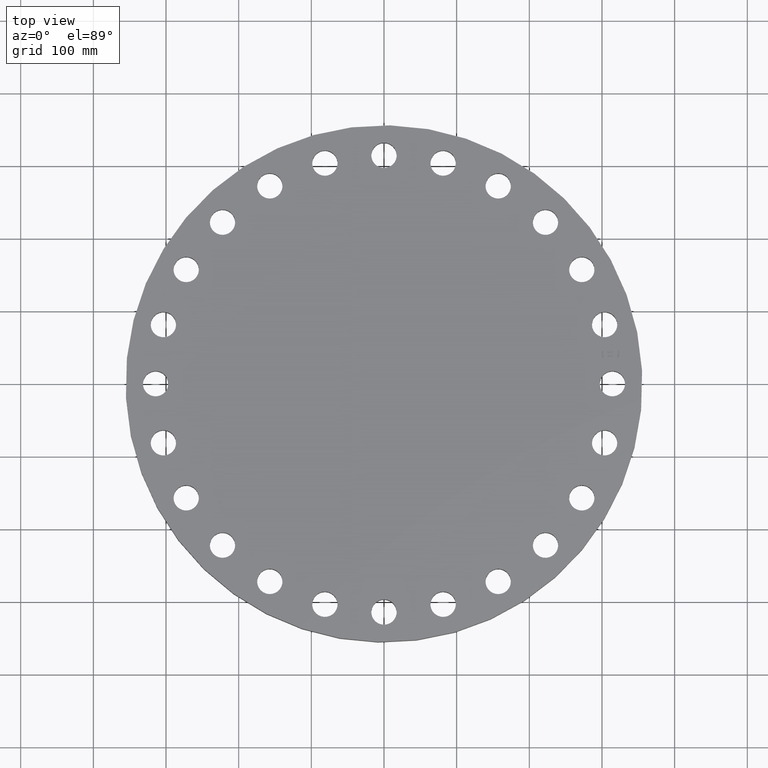
[diagram: clean part render]
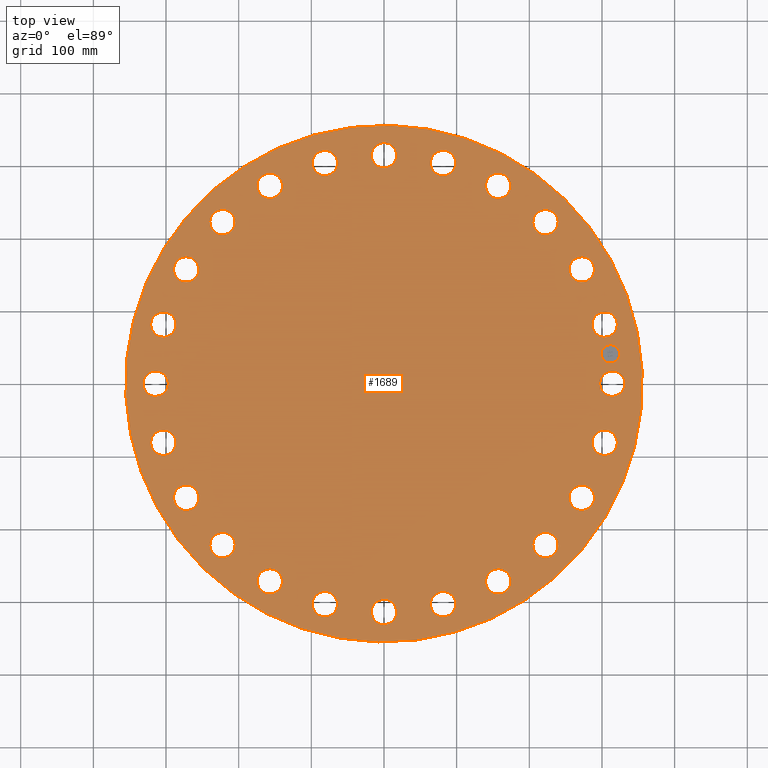
[diagram: same view with one face highlighted and labeled with its STEP entity id]
A machine part, top view. The second image highlights one B-rep face of the part: STEP entity #1689.
In plain terms, the highlighted planar face has unit normal (0, 0, 1).
Its self-contained STEP definition (entity closure, byte-faithful):
#65=AXIS2_PLACEMENT_3D('Circle Axis2P3D',#63,#64,$) ;
#82=AXIS2_PLACEMENT_3D('Circle Axis2P3D',#80,#81,$) ;
#108=AXIS2_PLACEMENT_3D('Circle Axis2P3D',#106,#107,$) ;
#134=AXIS2_PLACEMENT_3D('Circle Axis2P3D',#132,#133,$) ;
#598=AXIS2_PLACEMENT_3D('Circle Axis2P3D',#596,#597,$) ;
#610=AXIS2_PLACEMENT_3D('Circle Axis2P3D',#608,#609,$) ;
#641=AXIS2_PLACEMENT_3D('Circle Axis2P3D',#639,#640,$) ;
#653=AXIS2_PLACEMENT_3D('Circle Axis2P3D',#651,#652,$) ;
#684=AXIS2_PLACEMENT_3D('Circle Axis2P3D',#682,#683,$) ;
#696=AXIS2_PLACEMENT_3D('Circle Axis2P3D',#694,#695,$) ;
#727=AXIS2_PLACEMENT_3D('Circle Axis2P3D',#725,#726,$) ;
#739=AXIS2_PLACEMENT_3D('Circle Axis2P3D',#737,#738,$) ;
#770=AXIS2_PLACEMENT_3D('Circle Axis2P3D',#768,#769,$) ;
#782=AXIS2_PLACEMENT_3D('Circle Axis2P3D',#780,#781,$) ;
#813=AXIS2_PLACEMENT_3D('Circle Axis2P3D',#811,#812,$) ;
#825=AXIS2_PLACEMENT_3D('Circle Axis2P3D',#823,#824,$) ;
#856=AXIS2_PLACEMENT_3D('Circle Axis2P3D',#854,#855,$) ;
#868=AXIS2_PLACEMENT_3D('Circle Axis2P3D',#866,#867,$) ;
#899=AXIS2_PLACEMENT_3D('Circle Axis2P3D',#897,#898,$) ;
#911=AXIS2_PLACEMENT_3D('Circle Axis2P3D',#909,#910,$) ;
#942=AXIS2_PLACEMENT_3D('Circle Axis2P3D',#940,#941,$) ;
#954=AXIS2_PLACEMENT_3D('Circle Axis2P3D',#952,#953,$) ;
#985=AXIS2_PLACEMENT_3D('Circle Axis2P3D',#983,#984,$) ;
#997=AXIS2_PLACEMENT_3D('Circle Axis2P3D',#995,#996,$) ;
#1028=AXIS2_PLACEMENT_3D('Circle Axis2P3D',#1026,#1027,$) ;
#1040=AXIS2_PLACEMENT_3D('Circle Axis2P3D',#1038,#1039,$) ;
#1071=AXIS2_PLACEMENT_3D('Circle Axis2P3D',#1069,#1070,$) ;
#1083=AXIS2_PLACEMENT_3D('Circle Axis2P3D',#1081,#1082,$) ;
#1114=AXIS2_PLACEMENT_3D('Circle Axis2P3D',#1112,#1113,$) ;
#1126=AXIS2_PLACEMENT_3D('Circle Axis2P3D',#1124,#1125,$) ;
#1157=AXIS2_PLACEMENT_3D('Circle Axis2P3D',#1155,#1156,$) ;
#1169=AXIS2_PLACEMENT_3D('Circle Axis2P3D',#1167,#1168,$) ;
#1200=AXIS2_PLACEMENT_3D('Circle Axis2P3D',#1198,#1199,$) ;
#1212=AXIS2_PLACEMENT_3D('Circle Axis2P3D',#1210,#1211,$) ;
#1243=AXIS2_PLACEMENT_3D('Circle Axis2P3D',#1241,#1242,$) ;
#1255=AXIS2_PLACEMENT_3D('Circle Axis2P3D',#1253,#1254,$) ;
#1286=AXIS2_PLACEMENT_3D('Circle Axis2P3D',#1284,#1285,$) ;
#1298=AXIS2_PLACEMENT_3D('Circle Axis2P3D',#1296,#1297,$) ;
#1329=AXIS2_PLACEMENT_3D('Circle Axis2P3D',#1327,#1328,$) ;
#1341=AXIS2_PLACEMENT_3D('Circle Axis2P3D',#1339,#1340,$) ;
#1372=AXIS2_PLACEMENT_3D('Circle Axis2P3D',#1370,#1371,$) ;
#1384=AXIS2_PLACEMENT_3D('Circle Axis2P3D',#1382,#1383,$) ;
#1415=AXIS2_PLACEMENT_3D('Circle Axis2P3D',#1413,#1414,$) ;
#1427=AXIS2_PLACEMENT_3D('Circle Axis2P3D',#1425,#1426,$) ;
#1458=AXIS2_PLACEMENT_3D('Circle Axis2P3D',#1456,#1457,$) ;
#1470=AXIS2_PLACEMENT_3D('Circle Axis2P3D',#1468,#1469,$) ;
#1501=AXIS2_PLACEMENT_3D('Circle Axis2P3D',#1499,#1500,$) ;
#1513=AXIS2_PLACEMENT_3D('Circle Axis2P3D',#1511,#1512,$) ;
#1544=AXIS2_PLACEMENT_3D('Circle Axis2P3D',#1542,#1543,$) ;
#1556=AXIS2_PLACEMENT_3D('Circle Axis2P3D',#1554,#1555,$) ;
#1569=AXIS2_PLACEMENT_3D('Plane Axis2P3D',#1566,#1567,#1568) ;
#1673=AXIS2_PLACEMENT_3D('Circle Axis2P3D',#1671,#1672,$) ;
#1682=AXIS2_PLACEMENT_3D('Circle Axis2P3D',#1680,#1681,$) ;
#46=CARTESIAN_POINT('Vertex',(11.7716619887,0.329605057792,2.25000000001)) ;
#60=CARTESIAN_POINT('Vertex',(12.9783380114,-0.329605057792,2.25000000001)) ;
#63=CARTESIAN_POINT('Axis2P3D Location',(12.375,0.,2.25000000001)) ;
#80=CARTESIAN_POINT('Axis2P3D Location',(12.375,0.,2.25000000001)) ;
#103=CARTESIAN_POINT('Vertex',(12.2861558665,6.71195754049,2.25000000001)) ;
#106=CARTESIAN_POINT('Axis2P3D Location',(0.,0.,2.25000000001)) ;
#110=CARTESIAN_POINT('Vertex',(-12.2861558665,-6.71195754049,2.25000000001)) ;
#132=CARTESIAN_POINT('Axis2P3D Location',(0.,0.,2.25000000001)) ;
#586=CARTESIAN_POINT('Vertex',(11.285244267,3.36510435299,2.25000000001)) ;
#593=CARTESIAN_POINT('Vertex',(12.6214199338,3.04066701332,2.25000000001)) ;
#596=CARTESIAN_POINT('Axis2P3D Location',(11.9533321004,3.20288568316,2.25000000001)) ;
#608=CARTESIAN_POINT('Axis2P3D Location',(11.9533321004,3.20288568316,2.25000000001)) ;
#629=CARTESIAN_POINT('Vertex',(10.0297557981,6.17127734764,2.25000000001)) ;
#636=CARTESIAN_POINT('Vertex',(11.4043729456,6.20372265241,2.25000000001)) ;
#639=CARTESIAN_POINT('Axis2P3D Location',(10.7170643719,6.18750000002,2.25000000001)) ;
#651=CARTESIAN_POINT('Axis2P3D Location',(10.7170643719,6.18750000002,2.25000000001)) ;
#672=CARTESIAN_POINT('Vertex',(8.0907560466,8.55688798956,2.25000000001)) ;
#679=CARTESIAN_POINT('Vertex',(9.41013678784,8.94400484488,2.25000000001)) ;
#682=CARTESIAN_POINT('Axis2P3D Location',(8.75044641722,8.75044641722,2.25000000001)) ;
#694=CARTESIAN_POINT('Axis2P3D Location',(8.75044641722,8.75044641722,2.25000000001)) ;
#715=CARTESIAN_POINT('Vertex',(5.60038464111,10.3593608559,2.25000000001)) ;
#722=CARTESIAN_POINT('Vertex',(6.77461535894,11.0747678878,2.25000000001)) ;
#725=CARTESIAN_POINT('Axis2P3D Location',(6.18750000002,10.7170643719,2.25000000001)) ;
#737=CARTESIAN_POINT('Axis2P3D Location',(6.18750000002,10.7170643719,2.25000000001)) ;
#758=CARTESIAN_POINT('Vertex',(2.7283562774,11.4558603996,2.25000000001)) ;
#765=CARTESIAN_POINT('Vertex',(3.67741508891,12.4508038012,2.25000000001)) ;
#768=CARTESIAN_POINT('Axis2P3D Location',(3.20288568316,11.9533321004,2.25000000001)) ;
#780=CARTESIAN_POINT('Axis2P3D Location',(3.20288568316,11.9533321004,2.25000000001)) ;
#801=CARTESIAN_POINT('Vertex',(-0.329605057792,11.7716619887,2.25000000001)) ;
#808=CARTESIAN_POINT('Vertex',(0.329605057792,12.9783380114,2.25000000001)) ;
#811=CARTESIAN_POINT('Axis2P3D Location',(-1.48017966943E-015,12.375,2.25000000001)) ;
#823=CARTESIAN_POINT('Axis2P3D Location',(-1.48017966943E-015,12.375,2.25000000001)) ;
#844=CARTESIAN_POINT('Vertex',(-3.36510435299,11.285244267,2.25000000001)) ;
#851=CARTESIAN_POINT('Vertex',(-3.04066701332,12.6214199338,2.25000000001)) ;
#854=CARTESIAN_POINT('Axis2P3D Location',(-3.20288568316,11.9533321004,2.25000000001)) ;
#866=CARTESIAN_POINT('Axis2P3D Location',(-3.20288568316,11.9533321004,2.25000000001)) ;
#887=CARTESIAN_POINT('Vertex',(-6.17127734764,10.0297557981,2.25000000001)) ;
#894=CARTESIAN_POINT('Vertex',(-6.20372265241,11.4043729456,2.25000000001)) ;
#897=CARTESIAN_POINT('Axis2P3D Location',(-6.18750000002,10.7170643719,2.25000000001)) ;
#909=CARTESIAN_POINT('Axis2P3D Location',(-6.18750000002,10.7170643719,2.25000000001)) ;
#930=CARTESIAN_POINT('Vertex',(-8.55688798956,8.0907560466,2.25000000001)) ;
#937=CARTESIAN_POINT('Vertex',(-8.94400484488,9.41013678784,2.25000000001)) ;
#940=CARTESIAN_POINT('Axis2P3D Location',(-8.75044641722,8.75044641722,2.25000000001)) ;
#952=CARTESIAN_POINT('Axis2P3D Location',(-8.75044641722,8.75044641722,2.25000000001)) ;
#973=CARTESIAN_POINT('Vertex',(-10.3593608559,5.60038464111,2.25000000001)) ;
#980=CARTESIAN_POINT('Vertex',(-11.0747678878,6.77461535894,2.25000000001)) ;
#983=CARTESIAN_POINT('Axis2P3D Location',(-10.7170643719,6.18750000002,2.25000000001)) ;
#995=CARTESIAN_POINT('Axis2P3D Location',(-10.7170643719,6.18750000002,2.25000000001)) ;
#1016=CARTESIAN_POINT('Vertex',(-11.4558603996,2.7283562774,2.25000000001)) ;
#1023=CARTESIAN_POINT('Vertex',(-12.4508038012,3.67741508891,2.25000000001)) ;
#1026=CARTESIAN_POINT('Axis2P3D Location',(-11.9533321004,3.20288568316,2.25000000001)) ;
#1038=CARTESIAN_POINT('Axis2P3D Location',(-11.9533321004,3.20288568316,2.25000000001)) ;
#1059=CARTESIAN_POINT('Vertex',(-11.7716619887,-0.329605057792,2.25000000001)) ;
#1066=CARTESIAN_POINT('Vertex',(-12.9783380114,0.329605057792,2.25000000001)) ;
#1069=CARTESIAN_POINT('Axis2P3D Location',(-12.375,1.51550041395E-015,2.25000000001)) ;
#1081=CARTESIAN_POINT('Axis2P3D Location',(-12.375,1.51550041395E-015,2.25000000001)) ;
#1102=CARTESIAN_POINT('Vertex',(-11.285244267,-3.36510435299,2.25000000001)) ;
#1109=CARTESIAN_POINT('Vertex',(-12.6214199338,-3.04066701332,2.25000000001)) ;
#1112=CARTESIAN_POINT('Axis2P3D Location',(-11.9533321004,-3.20288568316,2.25000000001)) ;
#1124=CARTESIAN_POINT('Axis2P3D Location',(-11.9533321004,-3.20288568316,2.25000000001)) ;
#1145=CARTESIAN_POINT('Vertex',(-10.0297557981,-6.17127734764,2.25000000001)) ;
#1152=CARTESIAN_POINT('Vertex',(-11.4043729456,-6.20372265241,2.25000000001)) ;
#1155=CARTESIAN_POINT('Axis2P3D Location',(-10.7170643719,-6.18750000002,2.25000000001)) ;
#1167=CARTESIAN_POINT('Axis2P3D Location',(-10.7170643719,-6.18750000002,2.25000000001)) ;
#1188=CARTESIAN_POINT('Vertex',(-8.0907560466,-8.55688798956,2.25000000001)) ;
#1195=CARTESIAN_POINT('Vertex',(-9.41013678784,-8.94400484488,2.25000000001)) ;
#1198=CARTESIAN_POINT('Axis2P3D Location',(-8.75044641722,-8.75044641722,2.25000000001)) ;
#1210=CARTESIAN_POINT('Axis2P3D Location',(-8.75044641722,-8.75044641722,2.25000000001)) ;
#1231=CARTESIAN_POINT('Vertex',(-5.60038464111,-10.3593608559,2.25000000001)) ;
#1238=CARTESIAN_POINT('Vertex',(-6.77461535894,-11.0747678878,2.25000000001)) ;
#1241=CARTESIAN_POINT('Axis2P3D Location',(-6.18750000002,-10.7170643719,2.25000000001)) ;
#1253=CARTESIAN_POINT('Axis2P3D Location',(-6.18750000002,-10.7170643719,2.25000000001)) ;
#1274=CARTESIAN_POINT('Vertex',(-2.7283562774,-11.4558603996,2.25000000001)) ;
#1281=CARTESIAN_POINT('Vertex',(-3.67741508891,-12.4508038012,2.25000000001)) ;
#1284=CARTESIAN_POINT('Axis2P3D Location',(-3.20288568316,-11.9533321004,2.25000000001)) ;
#1296=CARTESIAN_POINT('Axis2P3D Location',(-3.20288568316,-11.9533321004,2.25000000001)) ;
#1317=CARTESIAN_POINT('Vertex',(0.329605057792,-11.7716619887,2.25000000001)) ;
#1324=CARTESIAN_POINT('Vertex',(-0.329605057792,-12.9783380114,2.25000000001)) ;
#1327=CARTESIAN_POINT('Axis2P3D Location',(-2.27325062093E-015,-12.375,2.25000000001)) ;
#1339=CARTESIAN_POINT('Axis2P3D Location',(-2.27325062093E-015,-12.375,2.25000000001)) ;
#1360=CARTESIAN_POINT('Vertex',(3.36510435299,-11.285244267,2.25000000001)) ;
#1367=CARTESIAN_POINT('Vertex',(3.04066701332,-12.6214199338,2.25000000001)) ;
#1370=CARTESIAN_POINT('Axis2P3D Location',(3.20288568316,-11.9533321004,2.25000000001)) ;
#1382=CARTESIAN_POINT('Axis2P3D Location',(3.20288568316,-11.9533321004,2.25000000001)) ;
#1403=CARTESIAN_POINT('Vertex',(6.17127734764,-10.0297557981,2.25000000001)) ;
#1410=CARTESIAN_POINT('Vertex',(6.20372265241,-11.4043729456,2.25000000001)) ;
#1413=CARTESIAN_POINT('Axis2P3D Location',(6.18750000002,-10.7170643719,2.25000000001)) ;
#1425=CARTESIAN_POINT('Axis2P3D Location',(6.18750000002,-10.7170643719,2.25000000001)) ;
#1446=CARTESIAN_POINT('Vertex',(8.55688798956,-8.0907560466,2.25000000001)) ;
#1453=CARTESIAN_POINT('Vertex',(8.94400484488,-9.41013678784,2.25000000001)) ;
#1456=CARTESIAN_POINT('Axis2P3D Location',(8.75044641722,-8.75044641722,2.25000000001)) ;
#1468=CARTESIAN_POINT('Axis2P3D Location',(8.75044641722,-8.75044641722,2.25000000001)) ;
#1489=CARTESIAN_POINT('Vertex',(10.3593608559,-5.60038464111,2.25000000001)) ;
#1496=CARTESIAN_POINT('Vertex',(11.0747678878,-6.77461535894,2.25000000001)) ;
#1499=CARTESIAN_POINT('Axis2P3D Location',(10.7170643719,-6.18750000002,2.25000000001)) ;
#1511=CARTESIAN_POINT('Axis2P3D Location',(10.7170643719,-6.18750000002,2.25000000001)) ;
#1532=CARTESIAN_POINT('Vertex',(11.4558603996,-2.7283562774,2.25000000001)) ;
#1539=CARTESIAN_POINT('Vertex',(12.4508038012,-3.67741508891,2.25000000001)) ;
#1542=CARTESIAN_POINT('Axis2P3D Location',(11.9533321004,-3.20288568316,2.25000000001)) ;
#1554=CARTESIAN_POINT('Axis2P3D Location',(11.9533321004,-3.20288568316,2.25000000001)) ;
#1566=CARTESIAN_POINT('Axis2P3D Location',(14.0000000001,0.,2.25000000001)) ;
#1671=CARTESIAN_POINT('Axis2P3D Location',(12.2691301595,1.61526162873,2.25000000001)) ;
#1675=CARTESIAN_POINT('Vertex',(12.2038670641,2.11098405446,2.25000000001)) ;
#1677=CARTESIAN_POINT('Vertex',(12.334393255,1.119539203,2.25000000001)) ;
#1680=CARTESIAN_POINT('Axis2P3D Location',(12.2691301595,1.61526162873,2.25000000001)) ;
#64=DIRECTION('Axis2P3D Direction',(0.,-0.,-0.0393700787402)) ;
#81=DIRECTION('Axis2P3D Direction',(0.,-0.,-0.0393700787402)) ;
#107=DIRECTION('Axis2P3D Direction',(0.,0.,0.0393700787402)) ;
#133=DIRECTION('Axis2P3D Direction',(0.,0.,0.0393700787402)) ;
#597=DIRECTION('Axis2P3D Direction',(0.,0.,-0.0393700787402)) ;
#609=DIRECTION('Axis2P3D Direction',(0.,0.,-0.0393700787402)) ;
#640=DIRECTION('Axis2P3D Direction',(0.,0.,-0.0393700787402)) ;
#652=DIRECTION('Axis2P3D Direction',(0.,0.,-0.0393700787402)) ;
#683=DIRECTION('Axis2P3D Direction',(0.,0.,-0.0393700787402)) ;
#695=DIRECTION('Axis2P3D Direction',(0.,0.,-0.0393700787402)) ;
#726=DIRECTION('Axis2P3D Direction',(0.,0.,-0.0393700787402)) ;
#738=DIRECTION('Axis2P3D Direction',(0.,0.,-0.0393700787402)) ;
#769=DIRECTION('Axis2P3D Direction',(0.,0.,-0.0393700787402)) ;
#781=DIRECTION('Axis2P3D Direction',(0.,0.,-0.0393700787402)) ;
#812=DIRECTION('Axis2P3D Direction',(0.,0.,-0.0393700787402)) ;
#824=DIRECTION('Axis2P3D Direction',(0.,0.,-0.0393700787402)) ;
#855=DIRECTION('Axis2P3D Direction',(0.,0.,-0.0393700787402)) ;
#867=DIRECTION('Axis2P3D Direction',(0.,0.,-0.0393700787402)) ;
#898=DIRECTION('Axis2P3D Direction',(0.,0.,-0.0393700787402)) ;
#910=DIRECTION('Axis2P3D Direction',(0.,0.,-0.0393700787402)) ;
#941=DIRECTION('Axis2P3D Direction',(0.,0.,-0.0393700787402)) ;
#953=DIRECTION('Axis2P3D Direction',(0.,0.,-0.0393700787402)) ;
#984=DIRECTION('Axis2P3D Direction',(0.,0.,-0.0393700787402)) ;
#996=DIRECTION('Axis2P3D Direction',(0.,0.,-0.0393700787402)) ;
#1027=DIRECTION('Axis2P3D Direction',(0.,0.,-0.0393700787402)) ;
#1039=DIRECTION('Axis2P3D Direction',(0.,0.,-0.0393700787402)) ;
#1070=DIRECTION('Axis2P3D Direction',(0.,0.,-0.0393700787402)) ;
#1082=DIRECTION('Axis2P3D Direction',(0.,0.,-0.0393700787402)) ;
#1113=DIRECTION('Axis2P3D Direction',(-0.,0.,-0.0393700787402)) ;
#1125=DIRECTION('Axis2P3D Direction',(-0.,0.,-0.0393700787402)) ;
#1156=DIRECTION('Axis2P3D Direction',(-0.,0.,-0.0393700787402)) ;
#1168=DIRECTION('Axis2P3D Direction',(-0.,0.,-0.0393700787402)) ;
#1199=DIRECTION('Axis2P3D Direction',(-0.,0.,-0.0393700787402)) ;
#1211=DIRECTION('Axis2P3D Direction',(-0.,0.,-0.0393700787402)) ;
#1242=DIRECTION('Axis2P3D Direction',(-0.,0.,-0.0393700787402)) ;
#1254=DIRECTION('Axis2P3D Direction',(-0.,0.,-0.0393700787402)) ;
#1285=DIRECTION('Axis2P3D Direction',(-0.,0.,-0.0393700787402)) ;
#1297=DIRECTION('Axis2P3D Direction',(-0.,0.,-0.0393700787402)) ;
#1328=DIRECTION('Axis2P3D Direction',(-0.,0.,-0.0393700787402)) ;
#1340=DIRECTION('Axis2P3D Direction',(-0.,0.,-0.0393700787402)) ;
#1371=DIRECTION('Axis2P3D Direction',(0.,-0.,-0.0393700787402)) ;
#1383=DIRECTION('Axis2P3D Direction',(0.,-0.,-0.0393700787402)) ;
#1414=DIRECTION('Axis2P3D Direction',(0.,-0.,-0.0393700787402)) ;
#1426=DIRECTION('Axis2P3D Direction',(0.,-0.,-0.0393700787402)) ;
#1457=DIRECTION('Axis2P3D Direction',(0.,-0.,-0.0393700787402)) ;
#1469=DIRECTION('Axis2P3D Direction',(0.,-0.,-0.0393700787402)) ;
#1500=DIRECTION('Axis2P3D Direction',(0.,-0.,-0.0393700787402)) ;
#1512=DIRECTION('Axis2P3D Direction',(0.,-0.,-0.0393700787402)) ;
#1543=DIRECTION('Axis2P3D Direction',(0.,-0.,-0.0393700787402)) ;
#1555=DIRECTION('Axis2P3D Direction',(0.,-0.,-0.0393700787402)) ;
#1567=DIRECTION('Axis2P3D Direction',(0.,0.,0.0393700787402)) ;
#1568=DIRECTION('Axis2P3D XDirection',(0.0393700787402,0.,0.)) ;
#1672=DIRECTION('Axis2P3D Direction',(0.,0.,0.0393700787402)) ;
#1681=DIRECTION('Axis2P3D Direction',(0.,0.,0.0393700787402)) ;
#1572=ORIENTED_EDGE('',*,*,#112,.T.) ;
#1573=ORIENTED_EDGE('',*,*,#136,.T.) ;
#1576=ORIENTED_EDGE('',*,*,#84,.F.) ;
#1577=ORIENTED_EDGE('',*,*,#67,.F.) ;
#1580=ORIENTED_EDGE('',*,*,#600,.F.) ;
#1581=ORIENTED_EDGE('',*,*,#612,.F.) ;
#1584=ORIENTED_EDGE('',*,*,#643,.F.) ;
#1585=ORIENTED_EDGE('',*,*,#655,.F.) ;
#1588=ORIENTED_EDGE('',*,*,#686,.F.) ;
#1589=ORIENTED_EDGE('',*,*,#698,.F.) ;
#1592=ORIENTED_EDGE('',*,*,#729,.F.) ;
#1593=ORIENTED_EDGE('',*,*,#741,.F.) ;
#1596=ORIENTED_EDGE('',*,*,#772,.F.) ;
#1597=ORIENTED_EDGE('',*,*,#784,.F.) ;
#1600=ORIENTED_EDGE('',*,*,#815,.F.) ;
#1601=ORIENTED_EDGE('',*,*,#827,.F.) ;
#1604=ORIENTED_EDGE('',*,*,#858,.F.) ;
#1605=ORIENTED_EDGE('',*,*,#870,.F.) ;
#1608=ORIENTED_EDGE('',*,*,#901,.F.) ;
#1609=ORIENTED_EDGE('',*,*,#913,.F.) ;
#1612=ORIENTED_EDGE('',*,*,#944,.F.) ;
#1613=ORIENTED_EDGE('',*,*,#956,.F.) ;
#1616=ORIENTED_EDGE('',*,*,#987,.F.) ;
#1617=ORIENTED_EDGE('',*,*,#999,.F.) ;
#1620=ORIENTED_EDGE('',*,*,#1030,.F.) ;
#1621=ORIENTED_EDGE('',*,*,#1042,.F.) ;
#1624=ORIENTED_EDGE('',*,*,#1073,.F.) ;
#1625=ORIENTED_EDGE('',*,*,#1085,.F.) ;
#1628=ORIENTED_EDGE('',*,*,#1116,.F.) ;
#1629=ORIENTED_EDGE('',*,*,#1128,.F.) ;
#1632=ORIENTED_EDGE('',*,*,#1159,.F.) ;
#1633=ORIENTED_EDGE('',*,*,#1171,.F.) ;
#1636=ORIENTED_EDGE('',*,*,#1202,.F.) ;
#1637=ORIENTED_EDGE('',*,*,#1214,.F.) ;
#1640=ORIENTED_EDGE('',*,*,#1245,.F.) ;
#1641=ORIENTED_EDGE('',*,*,#1257,.F.) ;
#1644=ORIENTED_EDGE('',*,*,#1288,.F.) ;
#1645=ORIENTED_EDGE('',*,*,#1300,.F.) ;
#1648=ORIENTED_EDGE('',*,*,#1331,.F.) ;
#1649=ORIENTED_EDGE('',*,*,#1343,.F.) ;
#1652=ORIENTED_EDGE('',*,*,#1374,.F.) ;
#1653=ORIENTED_EDGE('',*,*,#1386,.F.) ;
#1656=ORIENTED_EDGE('',*,*,#1417,.F.) ;
#1657=ORIENTED_EDGE('',*,*,#1429,.F.) ;
#1660=ORIENTED_EDGE('',*,*,#1460,.F.) ;
#1661=ORIENTED_EDGE('',*,*,#1472,.F.) ;
#1664=ORIENTED_EDGE('',*,*,#1503,.F.) ;
#1665=ORIENTED_EDGE('',*,*,#1515,.F.) ;
#1668=ORIENTED_EDGE('',*,*,#1546,.F.) ;
#1669=ORIENTED_EDGE('',*,*,#1558,.F.) ;
#1686=ORIENTED_EDGE('',*,*,#1679,.F.) ;
#1687=ORIENTED_EDGE('',*,*,#1684,.F.) ;
#1578=FACE_BOUND('',#1575,.T.) ;
#1582=FACE_BOUND('',#1579,.T.) ;
#1586=FACE_BOUND('',#1583,.T.) ;
#1590=FACE_BOUND('',#1587,.T.) ;
#1594=FACE_BOUND('',#1591,.T.) ;
#1598=FACE_BOUND('',#1595,.T.) ;
#1602=FACE_BOUND('',#1599,.T.) ;
#1606=FACE_BOUND('',#1603,.T.) ;
#1610=FACE_BOUND('',#1607,.T.) ;
#1614=FACE_BOUND('',#1611,.T.) ;
#1618=FACE_BOUND('',#1615,.T.) ;
#1622=FACE_BOUND('',#1619,.T.) ;
#1626=FACE_BOUND('',#1623,.T.) ;
#1630=FACE_BOUND('',#1627,.T.) ;
#1634=FACE_BOUND('',#1631,.T.) ;
#1638=FACE_BOUND('',#1635,.T.) ;
#1642=FACE_BOUND('',#1639,.T.) ;
#1646=FACE_BOUND('',#1643,.T.) ;
#1650=FACE_BOUND('',#1647,.T.) ;
#1654=FACE_BOUND('',#1651,.T.) ;
#1658=FACE_BOUND('',#1655,.T.) ;
#1662=FACE_BOUND('',#1659,.T.) ;
#1666=FACE_BOUND('',#1663,.T.) ;
#1670=FACE_BOUND('',#1667,.T.) ;
#1688=FACE_BOUND('',#1685,.T.) ;
#1689=ADVANCED_FACE('PartBody',(#1574,#1578,#1582,#1586,#1590,#1594,#1598,#1602,#1606,#1610,#1614,#1618,#1622,#1626,#1630,#1634,#1638,#1642,#1646,#1650,#1654,#1658,#1662,#1666,#1670,#1688),#1570,.T.) ;
#66=CIRCLE('generated circle',#65,0.687500000003) ;
#83=CIRCLE('generated circle',#82,0.687500000003) ;
#109=CIRCLE('generated circle',#108,14.0000000001) ;
#135=CIRCLE('generated circle',#134,14.0000000001) ;
#599=CIRCLE('generated circle',#598,0.687500000003) ;
#611=CIRCLE('generated circle',#610,0.687500000003) ;
#642=CIRCLE('generated circle',#641,0.687500000003) ;
#654=CIRCLE('generated circle',#653,0.687500000003) ;
#685=CIRCLE('generated circle',#684,0.687500000003) ;
#697=CIRCLE('generated circle',#696,0.687500000003) ;
#728=CIRCLE('generated circle',#727,0.687500000003) ;
#740=CIRCLE('generated circle',#739,0.687500000003) ;
#771=CIRCLE('generated circle',#770,0.687500000003) ;
#783=CIRCLE('generated circle',#782,0.687500000003) ;
#814=CIRCLE('generated circle',#813,0.687500000003) ;
#826=CIRCLE('generated circle',#825,0.687500000003) ;
#857=CIRCLE('generated circle',#856,0.687500000003) ;
#869=CIRCLE('generated circle',#868,0.687500000003) ;
#900=CIRCLE('generated circle',#899,0.687500000003) ;
#912=CIRCLE('generated circle',#911,0.687500000003) ;
#943=CIRCLE('generated circle',#942,0.687500000003) ;
#955=CIRCLE('generated circle',#954,0.687500000003) ;
#986=CIRCLE('generated circle',#985,0.687500000003) ;
#998=CIRCLE('generated circle',#997,0.687500000003) ;
#1029=CIRCLE('generated circle',#1028,0.687500000003) ;
#1041=CIRCLE('generated circle',#1040,0.687500000003) ;
#1072=CIRCLE('generated circle',#1071,0.687500000003) ;
#1084=CIRCLE('generated circle',#1083,0.687500000003) ;
#1115=CIRCLE('generated circle',#1114,0.687500000003) ;
#1127=CIRCLE('generated circle',#1126,0.687500000003) ;
#1158=CIRCLE('generated circle',#1157,0.687500000003) ;
#1170=CIRCLE('generated circle',#1169,0.687500000003) ;
#1201=CIRCLE('generated circle',#1200,0.687500000003) ;
#1213=CIRCLE('generated circle',#1212,0.687500000003) ;
#1244=CIRCLE('generated circle',#1243,0.687500000003) ;
#1256=CIRCLE('generated circle',#1255,0.687500000003) ;
#1287=CIRCLE('generated circle',#1286,0.687500000003) ;
#1299=CIRCLE('generated circle',#1298,0.687500000003) ;
#1330=CIRCLE('generated circle',#1329,0.687500000003) ;
#1342=CIRCLE('generated circle',#1341,0.687500000003) ;
#1373=CIRCLE('generated circle',#1372,0.687500000003) ;
#1385=CIRCLE('generated circle',#1384,0.687500000003) ;
#1416=CIRCLE('generated circle',#1415,0.687500000003) ;
#1428=CIRCLE('generated circle',#1427,0.687500000003) ;
#1459=CIRCLE('generated circle',#1458,0.687500000003) ;
#1471=CIRCLE('generated circle',#1470,0.687500000003) ;
#1502=CIRCLE('generated circle',#1501,0.687500000003) ;
#1514=CIRCLE('generated circle',#1513,0.687500000003) ;
#1545=CIRCLE('generated circle',#1544,0.687500000003) ;
#1557=CIRCLE('generated circle',#1556,0.687500000003) ;
#1674=CIRCLE('generated circle',#1673,0.499999995002) ;
#1683=CIRCLE('generated circle',#1682,0.499999995002) ;
#67=EDGE_CURVE('',#61,#47,#66,.F.) ;
#84=EDGE_CURVE('',#47,#61,#83,.F.) ;
#112=EDGE_CURVE('',#111,#104,#109,.T.) ;
#136=EDGE_CURVE('',#104,#111,#135,.T.) ;
#600=EDGE_CURVE('',#594,#587,#599,.F.) ;
#612=EDGE_CURVE('',#587,#594,#611,.F.) ;
#643=EDGE_CURVE('',#637,#630,#642,.F.) ;
#655=EDGE_CURVE('',#630,#637,#654,.F.) ;
#686=EDGE_CURVE('',#680,#673,#685,.F.) ;
#698=EDGE_CURVE('',#673,#680,#697,.F.) ;
#729=EDGE_CURVE('',#723,#716,#728,.F.) ;
#741=EDGE_CURVE('',#716,#723,#740,.F.) ;
#772=EDGE_CURVE('',#766,#759,#771,.F.) ;
#784=EDGE_CURVE('',#759,#766,#783,.F.) ;
#815=EDGE_CURVE('',#809,#802,#814,.F.) ;
#827=EDGE_CURVE('',#802,#809,#826,.F.) ;
#858=EDGE_CURVE('',#852,#845,#857,.F.) ;
#870=EDGE_CURVE('',#845,#852,#869,.F.) ;
#901=EDGE_CURVE('',#895,#888,#900,.F.) ;
#913=EDGE_CURVE('',#888,#895,#912,.F.) ;
#944=EDGE_CURVE('',#938,#931,#943,.F.) ;
#956=EDGE_CURVE('',#931,#938,#955,.F.) ;
#987=EDGE_CURVE('',#981,#974,#986,.F.) ;
#999=EDGE_CURVE('',#974,#981,#998,.F.) ;
#1030=EDGE_CURVE('',#1024,#1017,#1029,.F.) ;
#1042=EDGE_CURVE('',#1017,#1024,#1041,.F.) ;
#1073=EDGE_CURVE('',#1067,#1060,#1072,.F.) ;
#1085=EDGE_CURVE('',#1060,#1067,#1084,.F.) ;
#1116=EDGE_CURVE('',#1110,#1103,#1115,.F.) ;
#1128=EDGE_CURVE('',#1103,#1110,#1127,.F.) ;
#1159=EDGE_CURVE('',#1153,#1146,#1158,.F.) ;
#1171=EDGE_CURVE('',#1146,#1153,#1170,.F.) ;
#1202=EDGE_CURVE('',#1196,#1189,#1201,.F.) ;
#1214=EDGE_CURVE('',#1189,#1196,#1213,.F.) ;
#1245=EDGE_CURVE('',#1239,#1232,#1244,.F.) ;
#1257=EDGE_CURVE('',#1232,#1239,#1256,.F.) ;
#1288=EDGE_CURVE('',#1282,#1275,#1287,.F.) ;
#1300=EDGE_CURVE('',#1275,#1282,#1299,.F.) ;
#1331=EDGE_CURVE('',#1325,#1318,#1330,.F.) ;
#1343=EDGE_CURVE('',#1318,#1325,#1342,.F.) ;
#1374=EDGE_CURVE('',#1368,#1361,#1373,.F.) ;
#1386=EDGE_CURVE('',#1361,#1368,#1385,.F.) ;
#1417=EDGE_CURVE('',#1411,#1404,#1416,.F.) ;
#1429=EDGE_CURVE('',#1404,#1411,#1428,.F.) ;
#1460=EDGE_CURVE('',#1454,#1447,#1459,.F.) ;
#1472=EDGE_CURVE('',#1447,#1454,#1471,.F.) ;
#1503=EDGE_CURVE('',#1497,#1490,#1502,.F.) ;
#1515=EDGE_CURVE('',#1490,#1497,#1514,.F.) ;
#1546=EDGE_CURVE('',#1540,#1533,#1545,.F.) ;
#1558=EDGE_CURVE('',#1533,#1540,#1557,.F.) ;
#1679=EDGE_CURVE('',#1676,#1678,#1674,.T.) ;
#1684=EDGE_CURVE('',#1678,#1676,#1683,.T.) ;
#1571=EDGE_LOOP('',(#1572,#1573)) ;
#1575=EDGE_LOOP('',(#1576,#1577)) ;
#1579=EDGE_LOOP('',(#1580,#1581)) ;
#1583=EDGE_LOOP('',(#1584,#1585)) ;
#1587=EDGE_LOOP('',(#1588,#1589)) ;
#1591=EDGE_LOOP('',(#1592,#1593)) ;
#1595=EDGE_LOOP('',(#1596,#1597)) ;
#1599=EDGE_LOOP('',(#1600,#1601)) ;
#1603=EDGE_LOOP('',(#1604,#1605)) ;
#1607=EDGE_LOOP('',(#1608,#1609)) ;
#1611=EDGE_LOOP('',(#1612,#1613)) ;
#1615=EDGE_LOOP('',(#1616,#1617)) ;
#1619=EDGE_LOOP('',(#1620,#1621)) ;
#1623=EDGE_LOOP('',(#1624,#1625)) ;
#1627=EDGE_LOOP('',(#1628,#1629)) ;
#1631=EDGE_LOOP('',(#1632,#1633)) ;
#1635=EDGE_LOOP('',(#1636,#1637)) ;
#1639=EDGE_LOOP('',(#1640,#1641)) ;
#1643=EDGE_LOOP('',(#1644,#1645)) ;
#1647=EDGE_LOOP('',(#1648,#1649)) ;
#1651=EDGE_LOOP('',(#1652,#1653)) ;
#1655=EDGE_LOOP('',(#1656,#1657)) ;
#1659=EDGE_LOOP('',(#1660,#1661)) ;
#1663=EDGE_LOOP('',(#1664,#1665)) ;
#1667=EDGE_LOOP('',(#1668,#1669)) ;
#1685=EDGE_LOOP('',(#1686,#1687)) ;
#1574=FACE_OUTER_BOUND('',#1571,.T.) ;
#1570=PLANE('',#1569) ;
#47=VERTEX_POINT('',#46) ;
#61=VERTEX_POINT('',#60) ;
#104=VERTEX_POINT('',#103) ;
#111=VERTEX_POINT('',#110) ;
#587=VERTEX_POINT('',#586) ;
#594=VERTEX_POINT('',#593) ;
#630=VERTEX_POINT('',#629) ;
#637=VERTEX_POINT('',#636) ;
#673=VERTEX_POINT('',#672) ;
#680=VERTEX_POINT('',#679) ;
#716=VERTEX_POINT('',#715) ;
#723=VERTEX_POINT('',#722) ;
#759=VERTEX_POINT('',#758) ;
#766=VERTEX_POINT('',#765) ;
#802=VERTEX_POINT('',#801) ;
#809=VERTEX_POINT('',#808) ;
#845=VERTEX_POINT('',#844) ;
#852=VERTEX_POINT('',#851) ;
#888=VERTEX_POINT('',#887) ;
#895=VERTEX_POINT('',#894) ;
#931=VERTEX_POINT('',#930) ;
#938=VERTEX_POINT('',#937) ;
#974=VERTEX_POINT('',#973) ;
#981=VERTEX_POINT('',#980) ;
#1017=VERTEX_POINT('',#1016) ;
#1024=VERTEX_POINT('',#1023) ;
#1060=VERTEX_POINT('',#1059) ;
#1067=VERTEX_POINT('',#1066) ;
#1103=VERTEX_POINT('',#1102) ;
#1110=VERTEX_POINT('',#1109) ;
#1146=VERTEX_POINT('',#1145) ;
#1153=VERTEX_POINT('',#1152) ;
#1189=VERTEX_POINT('',#1188) ;
#1196=VERTEX_POINT('',#1195) ;
#1232=VERTEX_POINT('',#1231) ;
#1239=VERTEX_POINT('',#1238) ;
#1275=VERTEX_POINT('',#1274) ;
#1282=VERTEX_POINT('',#1281) ;
#1318=VERTEX_POINT('',#1317) ;
#1325=VERTEX_POINT('',#1324) ;
#1361=VERTEX_POINT('',#1360) ;
#1368=VERTEX_POINT('',#1367) ;
#1404=VERTEX_POINT('',#1403) ;
#1411=VERTEX_POINT('',#1410) ;
#1447=VERTEX_POINT('',#1446) ;
#1454=VERTEX_POINT('',#1453) ;
#1490=VERTEX_POINT('',#1489) ;
#1497=VERTEX_POINT('',#1496) ;
#1533=VERTEX_POINT('',#1532) ;
#1540=VERTEX_POINT('',#1539) ;
#1676=VERTEX_POINT('',#1675) ;
#1678=VERTEX_POINT('',#1677) ;